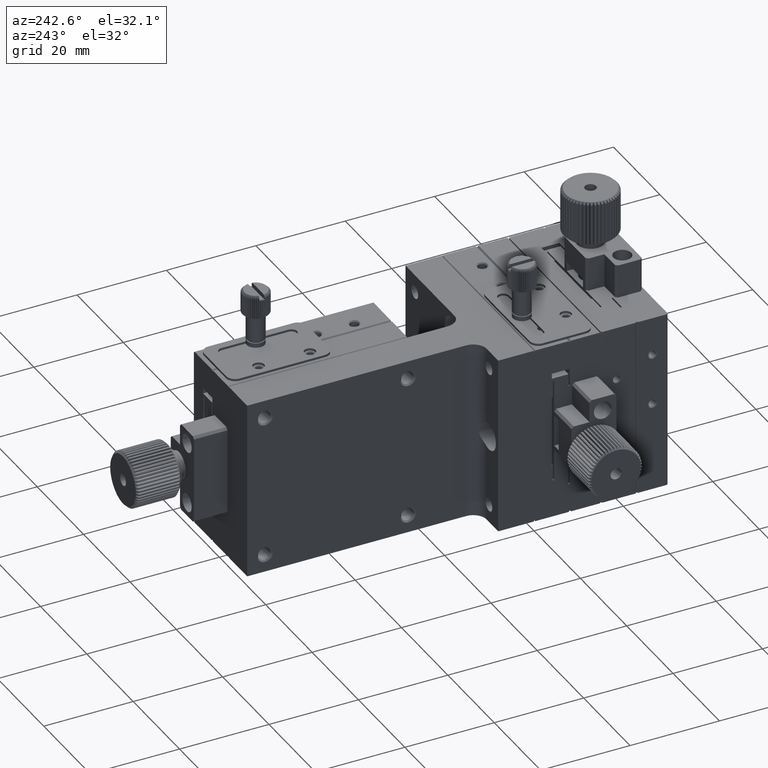
[diagram: clean part render]
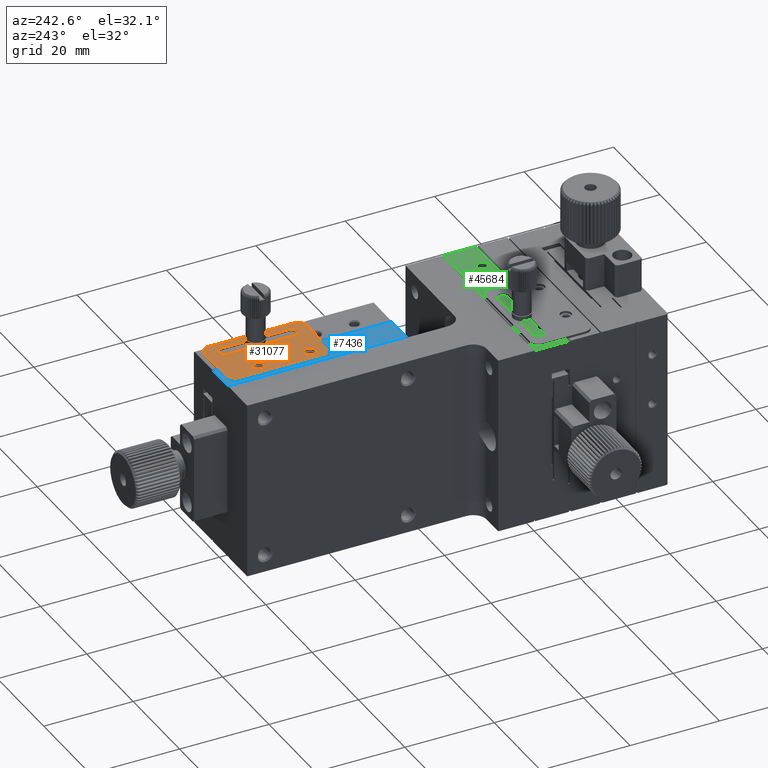
[diagram: same view with three faces highlighted in distinct colors, each labeled with its STEP entity id]
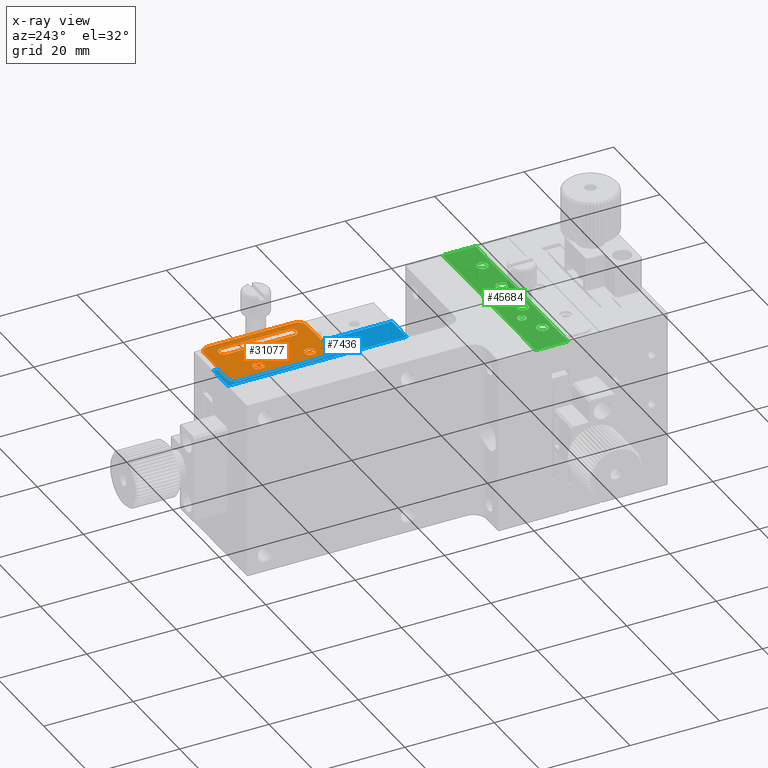
[diagram: x-ray of the same camera — body ghosted, the three highlighted faces saturated]
A machine part, auxiliary view with three faces highlighted in distinct colors.
The next image is the same camera in x-ray (body ghosted, the three faces saturated) — at least one of them is partly hidden behind the body in this view.
Their STEP definitions:

[orange] entity #31077 — the highlighted planar face has unit normal (0, 0, 1).
#1887 = ORIENTED_EDGE ( 'NONE', *, *, #59609, .T. ) ;
#2988 = LINE ( 'NONE', #53754, #42972 ) ;
#3479 = EDGE_CURVE ( 'NONE', #43402, #43222, #38424, .T. ) ;
#3864 = DIRECTION ( 'NONE',  ( -0.000000000000000000, -0.000000000000000000, 1.000000000000000000 ) ) ;
#3945 = VERTEX_POINT ( 'NONE', #13491 ) ;
#4078 = EDGE_CURVE ( 'NONE', #13911, #31860, #57856, .T. ) ;
#4210 = PLANE ( 'NONE',  #33022 ) ;
#4481 = CARTESIAN_POINT ( 'NONE',  ( 19.00000000000000000, 38.00000000000000000, 0.5000000000000048850 ) ) ;
#5254 = VERTEX_POINT ( 'NONE', #39929 ) ;
#7550 = EDGE_CURVE ( 'NONE', #31860, #53989, #30578, .T. ) ;
#8198 = FACE_OUTER_BOUND ( 'NONE', #34263, .T. ) ;
#8395 = DIRECTION ( 'NONE',  ( 0.000000000000000000, -1.000000000000000000, 0.000000000000000000 ) ) ;
#8597 = VERTEX_POINT ( 'NONE', #39919 ) ;
#8712 = EDGE_CURVE ( 'NONE', #33179, #33179, #8861, .T. ) ;
#8758 = LINE ( 'NONE', #37031, #49017 ) ;
#8798 = ORIENTED_EDGE ( 'NONE', *, *, #45491, .T. ) ;
#8808 = DIRECTION ( 'NONE',  ( 0.000000000000000000, 0.000000000000000000, 1.000000000000000000 ) ) ;
#8861 = CIRCLE ( 'NONE', #39918, 1.250000000000001110 ) ;
#9084 = CARTESIAN_POINT ( 'NONE',  ( 17.00000000000000000, 56.99999999999999289, 0.5000000000000048850 ) ) ;
#10085 = CARTESIAN_POINT ( 'NONE',  ( 19.50000000000000000, 41.24999999999999289, 0.5000000000000048850 ) ) ;
#10445 = ORIENTED_EDGE ( 'NONE', *, *, #56118, .T. ) ;
#11558 = AXIS2_PLACEMENT_3D ( 'NONE', #30333, #3864, #31232 ) ;
#12746 = DIRECTION ( 'NONE',  ( -0.000000000000000000, -0.000000000000000000, 1.000000000000000000 ) ) ;
#13442 = EDGE_CURVE ( 'NONE', #3945, #18425, #22421, .T. ) ;
#13491 = CARTESIAN_POINT ( 'NONE',  ( 17.00000000000000000, 56.99999999999999289, 0.5000000000000048850 ) ) ;
#13911 = VERTEX_POINT ( 'NONE', #14045 ) ;
#14045 = CARTESIAN_POINT ( 'NONE',  ( 26.25000000000000355, 55.00000000000000000, 0.5000000000000048850 ) ) ;
#15325 = VERTEX_POINT ( 'NONE', #33112 ) ;
#15863 = CIRCLE ( 'NONE', #23643, 1.250000000000001110 ) ;
#16170 = DIRECTION ( 'NONE',  ( 0.000000000000000000, 1.000000000000000000, 0.000000000000000000 ) ) ;
#16606 = DIRECTION ( 'NONE',  ( 0.000000000000000000, 1.000000000000000000, 0.000000000000000000 ) ) ;
#16609 = CARTESIAN_POINT ( 'NONE',  ( 28.75000000000000000, 56.99999999999999289, 0.5000000000000048850 ) ) ;
#16649 = EDGE_CURVE ( 'NONE', #43402, #27916, #28357, .T. ) ;
#17133 = AXIS2_PLACEMENT_3D ( 'NONE', #48102, #43554, #16170 ) ;
#17673 = ORIENTED_EDGE ( 'NONE', *, *, #8712, .T. ) ;
#17909 = CARTESIAN_POINT ( 'NONE',  ( 19.00000000000000000, 56.99999999999999289, 0.5000000000000048850 ) ) ;
#17978 = EDGE_CURVE ( 'NONE', #27916, #15325, #31427, .T. ) ;
#18425 = VERTEX_POINT ( 'NONE', #42381 ) ;
#18511 = DIRECTION ( 'NONE',  ( 0.000000000000000000, -1.000000000000000000, 0.000000000000000000 ) ) ;
#19306 = VECTOR ( 'NONE', #8395, 1000.000000000000000 ) ;
#20301 = ORIENTED_EDGE ( 'NONE', *, *, #4078, .T. ) ;
#20722 = ORIENTED_EDGE ( 'NONE', *, *, #17978, .T. ) ;
#21240 = DIRECTION ( 'NONE',  ( -1.000000000000000000, -0.000000000000000000, -0.000000000000000000 ) ) ;
#21282 = CIRCLE ( 'NONE', #11558, 2.000000000000001776 ) ;
#21867 = FACE_BOUND ( 'NONE', #51407, .T. ) ;
#22114 = AXIS2_PLACEMENT_3D ( 'NONE', #22297, #40854, #45103 ) ;
#22297 = CARTESIAN_POINT ( 'NONE',  ( 27.50000000000000000, 39.99999999999999289, 0.5000000000000048850 ) ) ;
#22421 = CIRCLE ( 'NONE', #57337, 2.000000000000001776 ) ;
#22898 = CARTESIAN_POINT ( 'NONE',  ( 30.50000000000000000, 56.99999999999999289, 0.5000000000000048850 ) ) ;
#23092 = FACE_BOUND ( 'NONE', #55351, .T. ) ;
#23643 = AXIS2_PLACEMENT_3D ( 'NONE', #40638, #54583, #53587 ) ;
#24485 = EDGE_CURVE ( 'NONE', #3945, #43222, #31565, .T. ) ;
#24550 = ORIENTED_EDGE ( 'NONE', *, *, #24485, .T. ) ;
#25029 = CIRCLE ( 'NONE', #22114, 1.250000000000001110 ) ;
#25171 = CARTESIAN_POINT ( 'NONE',  ( 28.50000000000000000, 35.99999999999999289, 0.5000000000000048850 ) ) ;
#25784 = CARTESIAN_POINT ( 'NONE',  ( 19.00000000000000000, 36.00000000000000000, 0.5000000000000048850 ) ) ;
#27196 = CARTESIAN_POINT ( 'NONE',  ( 19.00000000000000000, 56.99999999999999289, 0.5000000000000048850 ) ) ;
#27284 = DIRECTION ( 'NONE',  ( -0.000000000000000000, 1.000000000000000000, -0.000000000000000000 ) ) ;
#27624 = DIRECTION ( 'NONE',  ( 0.000000000000000000, 1.000000000000000000, 0.000000000000000000 ) ) ;
#27710 = DIRECTION ( 'NONE',  ( -0.000000000000000000, 1.000000000000000000, -0.000000000000000000 ) ) ;
#27916 = VERTEX_POINT ( 'NONE', #25171 ) ;
#28357 = LINE ( 'NONE', #32633, #58917 ) ;
#30068 = ORIENTED_EDGE ( 'NONE', *, *, #37342, .T. ) ;
#30333 = CARTESIAN_POINT ( 'NONE',  ( 28.50000000000000000, 56.99999999999999289, 0.5000000000000048850 ) ) ;
#30578 = LINE ( 'NONE', #16609, #19306 ) ;
#31077 = ADVANCED_FACE ( 'NONE', ( #8198, #23092, #50120, #21867 ), #4210, .T. ) ;
#31232 = DIRECTION ( 'NONE',  ( 0.000000000000000000, 1.000000000000000000, 0.000000000000000000 ) ) ;
#31427 = CIRCLE ( 'NONE', #45013, 2.000000000000008882 ) ;
#31565 = LINE ( 'NONE', #9084, #34948 ) ;
#31860 = VERTEX_POINT ( 'NONE', #31975 ) ;
#31867 = EDGE_CURVE ( 'NONE', #15325, #42737, #59319, .T. ) ;
#31975 = CARTESIAN_POINT ( 'NONE',  ( 28.75000000000000000, 54.99999999999999289, 0.5000000000000048850 ) ) ;
#32633 = CARTESIAN_POINT ( 'NONE',  ( 19.00000000000000000, 36.00000000000000000, 0.5000000000000048850 ) ) ;
#33022 = AXIS2_PLACEMENT_3D ( 'NONE', #17909, #8808, #36469 ) ;
#33112 = CARTESIAN_POINT ( 'NONE',  ( 30.50000000000000000, 38.00000000000000000, 0.5000000000000048850 ) ) ;
#33179 = VERTEX_POINT ( 'NONE', #10085 ) ;
#33421 = ORIENTED_EDGE ( 'NONE', *, *, #7550, .T. ) ;
#34263 = EDGE_LOOP ( 'NONE', ( #56434, #1887, #55120, #54649, #24550, #46635, #55155, #20722 ) ) ;
#34948 = VECTOR ( 'NONE', #18511, 1000.000000000000000 ) ;
#36469 = DIRECTION ( 'NONE',  ( 0.000000000000000000, -1.000000000000000000, 0.000000000000000000 ) ) ;
#37031 = CARTESIAN_POINT ( 'NONE',  ( 26.25000000000000355, 56.99999999999999289, 0.5000000000000048850 ) ) ;
#37050 = DIRECTION ( 'NONE',  ( 0.000000000000000000, 0.000000000000000000, -1.000000000000000000 ) ) ;
#37160 = CARTESIAN_POINT ( 'NONE',  ( 30.50000000000000000, 56.99999999999999289, 0.5000000000000048850 ) ) ;
#37342 = EDGE_CURVE ( 'NONE', #8597, #8597, #15863, .T. ) ;
#38424 = CIRCLE ( 'NONE', #39368, 2.000000000000001776 ) ;
#39368 = AXIS2_PLACEMENT_3D ( 'NONE', #4481, #37050, #55557 ) ;
#39918 = AXIS2_PLACEMENT_3D ( 'NONE', #57338, #53683, #16606 ) ;
#39919 = CARTESIAN_POINT ( 'NONE',  ( 19.50000000000000000, 52.75000000000000000, 0.5000000000000048850 ) ) ;
#39929 = CARTESIAN_POINT ( 'NONE',  ( 28.50000000000000000, 59.00000000000000000, 0.5000000000000048850 ) ) ;
#40638 = CARTESIAN_POINT ( 'NONE',  ( 19.50000000000000000, 51.50000000000000000, 0.5000000000000048850 ) ) ;
#40854 = DIRECTION ( 'NONE',  ( 0.000000000000000000, 0.000000000000000000, -1.000000000000000000 ) ) ;
#41187 = DIRECTION ( 'NONE',  ( 0.000000000000000000, 0.000000000000000000, -1.000000000000000000 ) ) ;
#41599 = EDGE_LOOP ( 'NONE', ( #30068 ) ) ;
#41877 = CARTESIAN_POINT ( 'NONE',  ( 28.75000000000000000, 39.99999999999999289, 0.5000000000000048850 ) ) ;
#42381 = CARTESIAN_POINT ( 'NONE',  ( 19.00000000000000000, 59.00000000000000000, 0.5000000000000048850 ) ) ;
#42737 = VERTEX_POINT ( 'NONE', #22898 ) ;
#42972 = VECTOR ( 'NONE', #21240, 1000.000000000000000 ) ;
#43222 = VERTEX_POINT ( 'NONE', #47994 ) ;
#43402 = VERTEX_POINT ( 'NONE', #25784 ) ;
#43554 = DIRECTION ( 'NONE',  ( 0.000000000000000000, 0.000000000000000000, -1.000000000000000000 ) ) ;
#45013 = AXIS2_PLACEMENT_3D ( 'NONE', #54386, #12746, #27624 ) ;
#45103 = DIRECTION ( 'NONE',  ( 0.000000000000000000, 1.000000000000000000, 0.000000000000000000 ) ) ;
#45448 = VECTOR ( 'NONE', #27710, 1000.000000000000000 ) ;
#45491 = EDGE_CURVE ( 'NONE', #53989, #54723, #25029, .T. ) ;
#46635 = ORIENTED_EDGE ( 'NONE', *, *, #3479, .F. ) ;
#47994 = CARTESIAN_POINT ( 'NONE',  ( 17.00000000000000000, 38.00000000000000000, 0.5000000000000048850 ) ) ;
#48102 = CARTESIAN_POINT ( 'NONE',  ( 27.50000000000000000, 55.00000000000000000, 0.5000000000000048850 ) ) ;
#49017 = VECTOR ( 'NONE', #27284, 1000.000000000000000 ) ;
#50120 = FACE_BOUND ( 'NONE', #41599, .T. ) ;
#51155 = DIRECTION ( 'NONE',  ( 1.000000000000000000, 0.000000000000000000, 0.000000000000000000 ) ) ;
#51363 = CARTESIAN_POINT ( 'NONE',  ( 26.25000000000000355, 39.99999999999999289, 0.5000000000000048850 ) ) ;
#51407 = EDGE_LOOP ( 'NONE', ( #10445, #20301, #33421, #8798 ) ) ;
#52416 = EDGE_CURVE ( 'NONE', #5254, #18425, #2988, .T. ) ;
#53587 = DIRECTION ( 'NONE',  ( 0.000000000000000000, 1.000000000000000000, 0.000000000000000000 ) ) ;
#53683 = DIRECTION ( 'NONE',  ( 0.000000000000000000, 0.000000000000000000, -1.000000000000000000 ) ) ;
#53754 = CARTESIAN_POINT ( 'NONE',  ( 28.50000000000000000, 59.00000000000000000, 0.5000000000000048850 ) ) ;
#53989 = VERTEX_POINT ( 'NONE', #41877 ) ;
#54386 = CARTESIAN_POINT ( 'NONE',  ( 28.50000000000000000, 38.00000000000000000, 0.5000000000000048850 ) ) ;
#54583 = DIRECTION ( 'NONE',  ( 0.000000000000000000, 0.000000000000000000, -1.000000000000000000 ) ) ;
#54649 = ORIENTED_EDGE ( 'NONE', *, *, #13442, .F. ) ;
#54723 = VERTEX_POINT ( 'NONE', #51363 ) ;
#55120 = ORIENTED_EDGE ( 'NONE', *, *, #52416, .T. ) ;
#55155 = ORIENTED_EDGE ( 'NONE', *, *, #16649, .T. ) ;
#55351 = EDGE_LOOP ( 'NONE', ( #17673 ) ) ;
#55557 = DIRECTION ( 'NONE',  ( 0.000000000000000000, 1.000000000000000000, 0.000000000000000000 ) ) ;
#56118 = EDGE_CURVE ( 'NONE', #54723, #13911, #8758, .T. ) ;
#56434 = ORIENTED_EDGE ( 'NONE', *, *, #31867, .T. ) ;
#57337 = AXIS2_PLACEMENT_3D ( 'NONE', #27196, #41187, #59706 ) ;
#57338 = CARTESIAN_POINT ( 'NONE',  ( 19.50000000000000000, 39.99999999999999289, 0.5000000000000048850 ) ) ;
#57856 = CIRCLE ( 'NONE', #17133, 1.250000000000001110 ) ;
#58917 = VECTOR ( 'NONE', #51155, 1000.000000000000000 ) ;
#59319 = LINE ( 'NONE', #37160, #45448 ) ;
#59609 = EDGE_CURVE ( 'NONE', #42737, #5254, #21282, .T. ) ;
#59706 = DIRECTION ( 'NONE',  ( 0.000000000000000000, 1.000000000000000000, 0.000000000000000000 ) ) ;

[blue] entity #7436 — the highlighted planar face has unit normal (0, 0, -1).
#1048 = ORIENTED_EDGE ( 'NONE', *, *, #13208, .F. ) ;
#1134 = DIRECTION ( 'NONE',  ( 0.000000000000000000, 1.000000000000000000, 0.000000000000000000 ) ) ;
#1528 = CARTESIAN_POINT ( 'NONE',  ( 22.70000000000001705, 19.99999999999999645, 1.835239774485340617E-14 ) ) ;
#1719 = FACE_OUTER_BOUND ( 'NONE', #57801, .T. ) ;
#2399 = CARTESIAN_POINT ( 'NONE',  ( 16.00000000000000000, 19.99999999999999645, 1.910944191179141280E-14 ) ) ;
#2573 = LINE ( 'NONE', #25686, #59250 ) ;
#3252 = EDGE_CURVE ( 'NONE', #29116, #55406, #40287, .T. ) ;
#4031 = ORIENTED_EDGE ( 'NONE', *, *, #8287, .T. ) ;
#5664 = DIRECTION ( 'NONE',  ( 0.000000000000000000, -1.000000000000000000, 0.000000000000000000 ) ) ;
#6129 = CARTESIAN_POINT ( 'NONE',  ( 22.70000000000001705, 60.00000000000000000, 1.774638294054263662E-14 ) ) ;
#6961 = LINE ( 'NONE', #2399, #53390 ) ;
#7107 = EDGE_CURVE ( 'NONE', #45566, #29112, #25792, .T. ) ;
#7436 = ADVANCED_FACE ( 'NONE', ( #1719 ), #25428, .F. ) ;
#8287 = EDGE_CURVE ( 'NONE', #49656, #9354, #17293, .T. ) ;
#8940 = ORIENTED_EDGE ( 'NONE', *, *, #24354, .F. ) ;
#9354 = VERTEX_POINT ( 'NONE', #6129 ) ;
#9949 = CARTESIAN_POINT ( 'NONE',  ( 16.30000000000001137, 19.99999999999999645, 1.910944191179141280E-14 ) ) ;
#10284 = VERTEX_POINT ( 'NONE', #53515 ) ;
#11192 = CARTESIAN_POINT ( 'NONE',  ( 16.00000000000000000, 60.00000000000000000, 1.910944191179141280E-14 ) ) ;
#12417 = CARTESIAN_POINT ( 'NONE',  ( 22.70000000000001705, 19.99999999999999645, 1.910944191179141280E-14 ) ) ;
#13208 = EDGE_CURVE ( 'NONE', #55406, #23453, #2573, .T. ) ;
#14555 = CIRCLE ( 'NONE', #18449, 2.000000000000001776 ) ;
#14584 = DIRECTION ( 'NONE',  ( -0.000000000000000000, -0.000000000000000000, 1.000000000000000000 ) ) ;
#15001 = DIRECTION ( 'NONE',  ( 1.000000000000000000, 0.000000000000000000, 0.000000000000000000 ) ) ;
#15190 = EDGE_CURVE ( 'NONE', #49656, #29116, #31599, .T. ) ;
#15597 = LINE ( 'NONE', #57531, #40001 ) ;
#15813 = DIRECTION ( 'NONE',  ( 0.000000000000000000, 1.000000000000000000, 0.000000000000000000 ) ) ;
#16421 = CARTESIAN_POINT ( 'NONE',  ( 19.00000000000000000, 38.00000000000000000, 4.898587196589409870E-15 ) ) ;
#17293 = LINE ( 'NONE', #39808, #44639 ) ;
#17972 = CARTESIAN_POINT ( 'NONE',  ( 16.30000000000001137, 60.00000000000000000, 1.910944191179141280E-14 ) ) ;
#18449 = AXIS2_PLACEMENT_3D ( 'NONE', #16421, #34944, #15813 ) ;
#18593 = VECTOR ( 'NONE', #42840, 1000.000000000000000 ) ;
#19799 = CARTESIAN_POINT ( 'NONE',  ( 19.00000000000000000, 59.00000000000000000, 1.200206299027993703E-14 ) ) ;
#19993 = ORIENTED_EDGE ( 'NONE', *, *, #26135, .F. ) ;
#20569 = CARTESIAN_POINT ( 'NONE',  ( 22.70000000000001705, 19.99999999999999645, 1.910944191179141280E-14 ) ) ;
#20953 = DIRECTION ( 'NONE',  ( -1.000000000000000000, -0.000000000000000000, -0.000000000000000000 ) ) ;
#21887 = CARTESIAN_POINT ( 'NONE',  ( 22.70000000000001705, 59.00000000000000000, 1.910944191179141280E-14 ) ) ;
#22450 = CARTESIAN_POINT ( 'NONE',  ( 22.70000000000001705, 59.00000000000000000, 1.842596086225655396E-14 ) ) ;
#23453 = VERTEX_POINT ( 'NONE', #32429 ) ;
#24024 = VERTEX_POINT ( 'NONE', #17972 ) ;
#24237 = DIRECTION ( 'NONE',  ( 0.000000000000000000, 0.000000000000000000, -1.000000000000000000 ) ) ;
#24354 = EDGE_CURVE ( 'NONE', #29112, #42299, #6961, .T. ) ;
#24953 = CARTESIAN_POINT ( 'NONE',  ( 22.70000000000001705, 36.00000000000000000, 1.521596349017871783E-14 ) ) ;
#25032 = VECTOR ( 'NONE', #59209, 1000.000000000000000 ) ;
#25428 = PLANE ( 'NONE',  #30966 ) ;
#25686 = CARTESIAN_POINT ( 'NONE',  ( 17.00000000000000000, 19.99999999999999645, 1.910944191179141280E-14 ) ) ;
#25792 = LINE ( 'NONE', #12417, #25032 ) ;
#26135 = EDGE_CURVE ( 'NONE', #10284, #45566, #15597, .T. ) ;
#26743 = DIRECTION ( 'NONE',  ( -1.000000000000000000, -0.000000000000000000, -0.000000000000000000 ) ) ;
#27861 = ORIENTED_EDGE ( 'NONE', *, *, #7107, .F. ) ;
#28693 = VECTOR ( 'NONE', #26743, 1000.000000000000000 ) ;
#29112 = VERTEX_POINT ( 'NONE', #1528 ) ;
#29116 = VERTEX_POINT ( 'NONE', #19799 ) ;
#30147 = ORIENTED_EDGE ( 'NONE', *, *, #50961, .T. ) ;
#30966 = AXIS2_PLACEMENT_3D ( 'NONE', #20569, #24237, #1134 ) ;
#30997 = EDGE_CURVE ( 'NONE', #23453, #10284, #14555, .T. ) ;
#31599 = LINE ( 'NONE', #21887, #28693 ) ;
#32429 = CARTESIAN_POINT ( 'NONE',  ( 17.00000000000000000, 38.00000000000000000, 1.200206299027993703E-14 ) ) ;
#33133 = DIRECTION ( 'NONE',  ( 0.000000000000000000, 1.000000000000000000, 0.000000000000000000 ) ) ;
#34944 = DIRECTION ( 'NONE',  ( -0.000000000000000000, -0.000000000000000000, 1.000000000000000000 ) ) ;
#37391 = AXIS2_PLACEMENT_3D ( 'NONE', #42865, #14584, #33133 ) ;
#39808 = CARTESIAN_POINT ( 'NONE',  ( 22.70000000000001705, 19.99999999999999645, 1.774638294054263662E-14 ) ) ;
#40001 = VECTOR ( 'NONE', #15001, 1000.000000000000000 ) ;
#40287 = CIRCLE ( 'NONE', #37391, 2.000000000000001776 ) ;
#42102 = CARTESIAN_POINT ( 'NONE',  ( 16.30000000000001137, 19.99999999999999645, 1.910944191179141280E-14 ) ) ;
#42299 = VERTEX_POINT ( 'NONE', #42102 ) ;
#42840 = DIRECTION ( 'NONE',  ( -1.000000000000000000, -0.000000000000000000, -0.000000000000000000 ) ) ;
#42865 = CARTESIAN_POINT ( 'NONE',  ( 19.00000000000000000, 56.99999999999999289, 4.898587196589409870E-15 ) ) ;
#43057 = LINE ( 'NONE', #9949, #57674 ) ;
#44243 = DIRECTION ( 'NONE',  ( -0.000000000000000000, -1.000000000000000000, -0.000000000000000000 ) ) ;
#44639 = VECTOR ( 'NONE', #59224, 1000.000000000000000 ) ;
#44800 = ORIENTED_EDGE ( 'NONE', *, *, #15190, .F. ) ;
#45566 = VERTEX_POINT ( 'NONE', #24953 ) ;
#45585 = ORIENTED_EDGE ( 'NONE', *, *, #30997, .F. ) ;
#45675 = ORIENTED_EDGE ( 'NONE', *, *, #3252, .F. ) ;
#49656 = VERTEX_POINT ( 'NONE', #22450 ) ;
#50961 = EDGE_CURVE ( 'NONE', #9354, #24024, #52824, .T. ) ;
#52824 = LINE ( 'NONE', #11192, #18593 ) ;
#53390 = VECTOR ( 'NONE', #20953, 1000.000000000000000 ) ;
#53515 = CARTESIAN_POINT ( 'NONE',  ( 19.00000000000000000, 36.00000000000000000, 1.200206299027993703E-14 ) ) ;
#54014 = EDGE_CURVE ( 'NONE', #24024, #42299, #43057, .T. ) ;
#55406 = VERTEX_POINT ( 'NONE', #58524 ) ;
#57434 = ORIENTED_EDGE ( 'NONE', *, *, #54014, .T. ) ;
#57531 = CARTESIAN_POINT ( 'NONE',  ( 22.70000000000001705, 36.00000000000000000, 1.910944191179141280E-14 ) ) ;
#57674 = VECTOR ( 'NONE', #5664, 1000.000000000000000 ) ;
#57801 = EDGE_LOOP ( 'NONE', ( #4031, #30147, #57434, #8940, #27861, #19993, #45585, #1048, #45675, #44800 ) ) ;
#58524 = CARTESIAN_POINT ( 'NONE',  ( 17.00000000000000000, 56.99999999999999289, 1.200206299027993703E-14 ) ) ;
#59209 = DIRECTION ( 'NONE',  ( -0.000000000000000000, -1.000000000000000000, -0.000000000000000000 ) ) ;
#59224 = DIRECTION ( 'NONE',  ( -0.000000000000000000, 1.000000000000000000, -0.000000000000000000 ) ) ;
#59250 = VECTOR ( 'NONE', #44243, 1000.000000000000000 ) ;

[green] entity #45684 — the highlighted planar face has unit normal (0, -0, -1).
#420 = VERTEX_POINT ( 'NONE', #7418 ) ;
#799 = CARTESIAN_POINT ( 'NONE',  ( 0.000000000000000000, -0.3000000000000110911, -1.428598992575523340E-14 ) ) ;
#854 = AXIS2_PLACEMENT_3D ( 'NONE', #55609, #55911, #9736 ) ;
#1698 = CARTESIAN_POINT ( 'NONE',  ( 40.00000000000000000, -7.699999999999989519, -1.332463677593694361E-14 ) ) ;
#2029 = EDGE_LOOP ( 'NONE', ( #59580 ) ) ;
#2427 = FACE_BOUND ( 'NONE', #2029, .T. ) ;
#6626 = DIRECTION ( 'NONE',  ( 1.000000000000000000, 0.000000000000000000, 0.000000000000000000 ) ) ;
#7288 = CARTESIAN_POINT ( 'NONE',  ( 40.00000000000000000, -0.3000000000000109801, -1.415534356397070014E-14 ) ) ;
#7418 = CARTESIAN_POINT ( 'NONE',  ( 0.000000000000000000, -7.699999999999991296, -1.353132623041149944E-14 ) ) ;
#8004 = CARTESIAN_POINT ( 'NONE',  ( 40.00000000000000000, 0.000000000000000000, -1.414883835093579973E-14 ) ) ;
#8817 = DIRECTION ( 'NONE',  ( -1.000000000000000000, -0.000000000000000000, -0.000000000000000000 ) ) ;
#9147 = ORIENTED_EDGE ( 'NONE', *, *, #40307, .F. ) ;
#9216 = DIRECTION ( 'NONE',  ( 0.000000000000000000, -1.000000000000000000, -0.000000000000000000 ) ) ;
#9736 = DIRECTION ( 'NONE',  ( -1.000000000000000000, 0.000000000000000000, 0.000000000000000000 ) ) ;
#11159 = VERTEX_POINT ( 'NONE', #1698 ) ;
#12163 = DIRECTION ( 'NONE',  ( 0.000000000000000000, 1.000000000000000000, -1.199279573124600109E-16 ) ) ;
#12496 = CARTESIAN_POINT ( 'NONE',  ( 24.50000000000000000, -5.500000000000000000, 0.000000000000000000 ) ) ;
#13316 = DIRECTION ( 'NONE',  ( 1.000000000000000000, 0.000000000000000000, 0.000000000000000000 ) ) ;
#15505 = VERTEX_POINT ( 'NONE', #47984 ) ;
#16871 = AXIS2_PLACEMENT_3D ( 'NONE', #12496, #55338, #31040 ) ;
#18442 = ORIENTED_EDGE ( 'NONE', *, *, #39400, .F. ) ;
#19539 = EDGE_LOOP ( 'NONE', ( #18442 ) ) ;
#20343 = CARTESIAN_POINT ( 'NONE',  ( 15.50000000000000000, -5.500000000000000000, 0.000000000000000000 ) ) ;
#20472 = AXIS2_PLACEMENT_3D ( 'NONE', #53125, #48281, #6626 ) ;
#20738 = CIRCLE ( 'NONE', #16871, 1.249999999959526598 ) ;
#20907 = CARTESIAN_POINT ( 'NONE',  ( 11.00000000000000178, -3.500000000000000000, 0.000000000000000000 ) ) ;
#20981 = FACE_OUTER_BOUND ( 'NONE', #37742, .T. ) ;
#22489 = CARTESIAN_POINT ( 'NONE',  ( 40.00000000000000000, -7.699999999999990408, -1.326787667985849922E-14 ) ) ;
#22796 = VERTEX_POINT ( 'NONE', #28239 ) ;
#23129 = AXIS2_PLACEMENT_3D ( 'NONE', #7288, #25838, #12163 ) ;
#23611 = AXIS2_PLACEMENT_3D ( 'NONE', #52838, #24309, #29739 ) ;
#23847 = CIRCLE ( 'NONE', #41337, 1.250000000001818989 ) ;
#24309 = DIRECTION ( 'NONE',  ( 0.000000000000000000, -0.000000000000000000, 1.000000000000000000 ) ) ;
#24758 = VECTOR ( 'NONE', #9216, 1000.000000000000000 ) ;
#25838 = DIRECTION ( 'NONE',  ( 0.000000000000000000, -1.199279573124600109E-16, -1.000000000000000000 ) ) ;
#26507 = CARTESIAN_POINT ( 'NONE',  ( 34.24999999998590283, -5.500000000000000000, -1.326971327664851914E-20 ) ) ;
#27524 = ORIENTED_EDGE ( 'NONE', *, *, #50968, .F. ) ;
#28031 = VERTEX_POINT ( 'NONE', #32598 ) ;
#28239 = CARTESIAN_POINT ( 'NONE',  ( 8.250000000032287062, -5.500000000000000000, 0.000000000000000000 ) ) ;
#29432 = VECTOR ( 'NONE', #50137, 1000.000000000000000 ) ;
#29739 = DIRECTION ( 'NONE',  ( 1.000000000000000000, 0.000000000000000000, 0.000000000000000000 ) ) ;
#30393 = PLANE ( 'NONE',  #23129 ) ;
#30401 = CARTESIAN_POINT ( 'NONE',  ( 0.000000000000000000, 0.000000000000000000, -1.414883835093579973E-14 ) ) ;
#31040 = DIRECTION ( 'NONE',  ( 1.000000000000000000, 0.000000000000000000, 0.000000000000000000 ) ) ;
#32119 = ORIENTED_EDGE ( 'NONE', *, *, #58496, .T. ) ;
#32196 = EDGE_CURVE ( 'NONE', #11159, #420, #45910, .T. ) ;
#32598 = CARTESIAN_POINT ( 'NONE',  ( 16.75000000000181899, -5.500000000000000000, 0.000000000000000000 ) ) ;
#32719 = VERTEX_POINT ( 'NONE', #799 ) ;
#35694 = EDGE_CURVE ( 'NONE', #49914, #49914, #53705, .T. ) ;
#36710 = VECTOR ( 'NONE', #45844, 1000.000000000000000 ) ;
#37742 = EDGE_LOOP ( 'NONE', ( #37748, #44274, #32119, #58462 ) ) ;
#37748 = ORIENTED_EDGE ( 'NONE', *, *, #32196, .F. ) ;
#37769 = VERTEX_POINT ( 'NONE', #55977 ) ;
#38716 = EDGE_CURVE ( 'NONE', #15505, #11159, #50833, .T. ) ;
#39400 = EDGE_CURVE ( 'NONE', #28031, #28031, #23847, .T. ) ;
#39542 = FACE_BOUND ( 'NONE', #19539, .T. ) ;
#40307 = EDGE_CURVE ( 'NONE', #37769, #37769, #20738, .T. ) ;
#41337 = AXIS2_PLACEMENT_3D ( 'NONE', #20343, #44936, #13316 ) ;
#44274 = ORIENTED_EDGE ( 'NONE', *, *, #38716, .F. ) ;
#44936 = DIRECTION ( 'NONE',  ( 0.000000000000000000, -0.000000000000000000, 1.000000000000000000 ) ) ;
#45684 = ADVANCED_FACE ( 'NONE', ( #20981, #2427, #57460, #39542, #58055, #53801 ), #30393, .F. ) ;
#45844 = DIRECTION ( 'NONE',  ( -1.000000000000000000, -0.000000000000000000, -0.000000000000000000 ) ) ;
#45910 = LINE ( 'NONE', #22489, #47314 ) ;
#47314 = VECTOR ( 'NONE', #8817, 1000.000000000000000 ) ;
#47984 = CARTESIAN_POINT ( 'NONE',  ( 40.00000000000000000, -0.3000000000000109801, -1.423177981713095502E-14 ) ) ;
#48281 = DIRECTION ( 'NONE',  ( 0.000000000000000000, -0.000000000000000000, 1.000000000000000000 ) ) ;
#49467 = VERTEX_POINT ( 'NONE', #20907 ) ;
#49625 = CIRCLE ( 'NONE', #20472, 1.250000000032286840 ) ;
#49914 = VERTEX_POINT ( 'NONE', #26507 ) ;
#50137 = DIRECTION ( 'NONE',  ( 0.000000000000000000, -1.000000000000000000, -0.000000000000000000 ) ) ;
#50370 = CARTESIAN_POINT ( 'NONE',  ( 40.00000000000000000, -0.3000000000000112577, -1.441988889405720897E-14 ) ) ;
#50833 = LINE ( 'NONE', #8004, #24758 ) ;
#50968 = EDGE_CURVE ( 'NONE', #22796, #22796, #49625, .T. ) ;
#51802 = EDGE_LOOP ( 'NONE', ( #27524 ) ) ;
#52758 = EDGE_LOOP ( 'NONE', ( #53147 ) ) ;
#52838 = CARTESIAN_POINT ( 'NONE',  ( 33.00000000000000000, -5.500000000000000000, -1.326971327664851914E-20 ) ) ;
#53125 = CARTESIAN_POINT ( 'NONE',  ( 7.000000000000000000, -5.500000000000000000, 0.000000000000000000 ) ) ;
#53147 = ORIENTED_EDGE ( 'NONE', *, *, #35694, .F. ) ;
#53365 = EDGE_CURVE ( 'NONE', #32719, #420, #53807, .T. ) ;
#53705 = CIRCLE ( 'NONE', #23611, 1.249999999985901278 ) ;
#53801 = FACE_BOUND ( 'NONE', #52758, .T. ) ;
#53807 = LINE ( 'NONE', #30401, #29432 ) ;
#55338 = DIRECTION ( 'NONE',  ( 0.000000000000000000, -0.000000000000000000, 1.000000000000000000 ) ) ;
#55609 = CARTESIAN_POINT ( 'NONE',  ( 12.00000000000000000, -3.500000000000000000, 0.000000000000000000 ) ) ;
#55911 = DIRECTION ( 'NONE',  ( -0.000000000000000000, -0.000000000000000000, 1.000000000000000000 ) ) ;
#55977 = CARTESIAN_POINT ( 'NONE',  ( 25.74999999995952749, -5.500000000000000000, 0.000000000000000000 ) ) ;
#57460 = FACE_BOUND ( 'NONE', #51802, .T. ) ;
#57964 = EDGE_LOOP ( 'NONE', ( #9147 ) ) ;
#58055 = FACE_BOUND ( 'NONE', #57964, .T. ) ;
#58462 = ORIENTED_EDGE ( 'NONE', *, *, #53365, .T. ) ;
#58496 = EDGE_CURVE ( 'NONE', #15505, #32719, #60098, .T. ) ;
#59063 = CIRCLE ( 'NONE', #854, 0.9999999999999991118 ) ;
#59320 = EDGE_CURVE ( 'NONE', #49467, #49467, #59063, .T. ) ;
#59580 = ORIENTED_EDGE ( 'NONE', *, *, #59320, .F. ) ;
#60098 = LINE ( 'NONE', #50370, #36710 ) ;